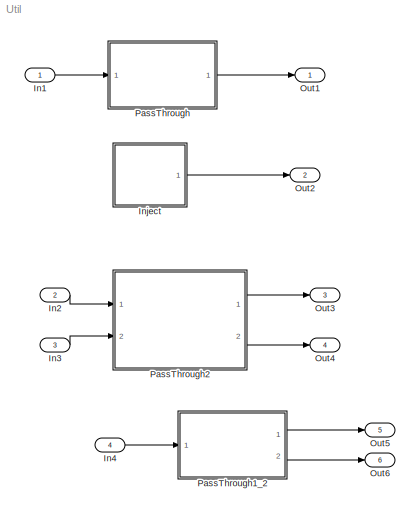
MODEL Util
KIND model
BLOCK [Inport] In1
  IconDisplay = Port number
  OutDataType = fixdt(1, 16)
  OutScaling = 2^0
  SID = 1
BLOCK [Inport] In2
  IconDisplay = Port number
  OutDataType = fixdt(1, 16)
  OutScaling = 2^0
  Port = 2
  SID = 11
BLOCK [Inport] In3
  IconDisplay = Port number
  OutDataType = fixdt(1, 16)
  OutScaling = 2^0
  Port = 3
  SID = 17
BLOCK [Inport] In4
  IconDisplay = Port number
  OutDataType = fixdt(1, 16)
  OutScaling = 2^0
  Port = 4
  SID = 26
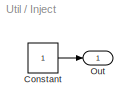
BLOCK [SubSystem] Inject
  FunctionWithSeparateData = off
  MaskHideContents = off
  MinAlgLoopOccurrences = off
  Opaque = off
  Ports = [0, 1]
  PropExecContextOutsideSubsystem = off
  RTWSystemCode = Auto
  RequestExecContextInheritance = off
  SID = 9
BLOCK [Constant] Inject/Constant
  OutDataType = fixdt(1, 16)
  OutScaling = 2^0
  SID = 4
BLOCK [Outport] Inject/Out
  IconDisplay = Port number
  SID = 10
BLOCK [Outport] Out1
  IconDisplay = Port number
  OutDataType = fixdt(1, 16)
  OutScaling = 2^0
  SID = 2
BLOCK [Outport] Out2
  IconDisplay = Port number
  OutDataType = fixdt(1, 16)
  OutScaling = 2^0
  Port = 2
  SID = 5
BLOCK [Outport] Out3
  IconDisplay = Port number
  OutDataType = fixdt(1, 16)
  OutScaling = 2^0
  Port = 3
  SID = 16
BLOCK [Outport] Out4
  IconDisplay = Port number
  OutDataType = fixdt(1, 16)
  OutScaling = 2^0
  Port = 4
  SID = 18
BLOCK [Outport] Out5
  IconDisplay = Port number
  OutDataType = fixdt(1, 16)
  OutScaling = 2^0
  Port = 5
  SID = 31
BLOCK [Outport] Out6
  IconDisplay = Port number
  OutDataType = fixdt(1, 16)
  OutScaling = 2^0
  Port = 6
  SID = 33
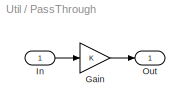
BLOCK [SubSystem] PassThrough
  FunctionWithSeparateData = off
  MaskHideContents = off
  MinAlgLoopOccurrences = off
  Opaque = off
  Ports = [1, 1]
  PropExecContextOutsideSubsystem = off
  RTWSystemCode = Auto
  RequestExecContextInheritance = off
  SID = 6
BLOCK [Gain] PassThrough/Gain
  OutDataType = fixdt(1, 16)
  OutDataTypeMode = Inherit via internal rule
  OutDataTypeStr = Inherit: Inherit via internal rule
  OutScaling = 2^0
  ParamDataTypeStr = Inherit: Inherit via internal rule
  ParameterDataType = fixdt(1, 16)
  ParameterDataTypeMode = Inherit via internal rule
  ParameterScaling = 2^0
  SID = 3
  SaturateOnIntegerOverflow = off
BLOCK [Inport] PassThrough/In
  IconDisplay = Port number
  SID = 7
BLOCK [Outport] PassThrough/Out
  IconDisplay = Port number
  SID = 8
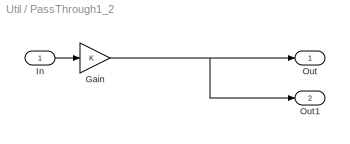
BLOCK [SubSystem] PassThrough1_2
  FunctionWithSeparateData = off
  MaskHideContents = off
  MinAlgLoopOccurrences = off
  Opaque = off
  Ports = [1, 2]
  PropExecContextOutsideSubsystem = off
  RTWSystemCode = Auto
  RequestExecContextInheritance = off
  SID = 27
BLOCK [Gain] PassThrough1_2/Gain
  OutDataType = fixdt(1, 16)
  OutDataTypeMode = Inherit via internal rule
  OutDataTypeStr = Inherit: Inherit via internal rule
  OutScaling = 2^0
  ParamDataTypeStr = Inherit: Inherit via internal rule
  ParameterDataType = fixdt(1, 16)
  ParameterDataTypeMode = Inherit via internal rule
  ParameterScaling = 2^0
  SID = 29
  SaturateOnIntegerOverflow = off
BLOCK [Inport] PassThrough1_2/In
  IconDisplay = Port number
  SID = 28
BLOCK [Outport] PassThrough1_2/Out
  IconDisplay = Port number
  SID = 30
BLOCK [Outport] PassThrough1_2/Out1
  IconDisplay = Port number
  Port = 2
  SID = 32
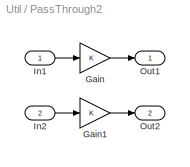
BLOCK [SubSystem] PassThrough2
  FunctionWithSeparateData = off
  MaskHideContents = off
  MinAlgLoopOccurrences = off
  Opaque = off
  Ports = [2, 2]
  PropExecContextOutsideSubsystem = off
  RTWSystemCode = Auto
  RequestExecContextInheritance = off
  SID = 21
BLOCK [Gain] PassThrough2/Gain
  OutDataType = fixdt(1, 16)
  OutDataTypeMode = Inherit via internal rule
  OutDataTypeStr = Inherit: Inherit via internal rule
  OutScaling = 2^0
  ParamDataTypeStr = Inherit: Inherit via internal rule
  ParameterDataType = fixdt(1, 16)
  ParameterDataTypeMode = Inherit via internal rule
  ParameterScaling = 2^0
  SID = 19
  SaturateOnIntegerOverflow = off
BLOCK [Gain] PassThrough2/Gain1
  OutDataType = fixdt(1, 16)
  OutDataTypeMode = Inherit via internal rule
  OutDataTypeStr = Inherit: Inherit via internal rule
  OutScaling = 2^0
  ParamDataTypeStr = Inherit: Inherit via internal rule
  ParameterDataType = fixdt(1, 16)
  ParameterDataTypeMode = Inherit via internal rule
  ParameterScaling = 2^0
  SID = 20
  SaturateOnIntegerOverflow = off
BLOCK [Inport] PassThrough2/In1
  IconDisplay = Port number
  SID = 22
BLOCK [Inport] PassThrough2/In2
  IconDisplay = Port number
  Port = 2
  SID = 24
BLOCK [Outport] PassThrough2/Out1
  IconDisplay = Port number
  SID = 23
BLOCK [Outport] PassThrough2/Out2
  IconDisplay = Port number
  Port = 2
  SID = 25
LINE In1:1 -> PassThrough:1
LINE In2:1 -> PassThrough2:1
LINE In3:1 -> PassThrough2:2
LINE In4:1 -> PassThrough1_2:1
LINE Inject/Constant:1 -> Inject/Out:1
LINE Inject:1 -> Out2:1
LINE PassThrough/Gain:1 -> PassThrough/Out:1
LINE PassThrough/In:1 -> PassThrough/Gain:1
NET PassThrough1_2/Gain:1 -> PassThrough1_2/Out1:1, PassThrough1_2/Out:1
LINE PassThrough1_2/In:1 -> PassThrough1_2/Gain:1
LINE PassThrough1_2:1 -> Out5:1
LINE PassThrough1_2:2 -> Out6:1
LINE PassThrough2/Gain1:1 -> PassThrough2/Out2:1
LINE PassThrough2/Gain:1 -> PassThrough2/Out1:1
LINE PassThrough2/In1:1 -> PassThrough2/Gain:1
LINE PassThrough2/In2:1 -> PassThrough2/Gain1:1
LINE PassThrough2:1 -> Out3:1
LINE PassThrough2:2 -> Out4:1
LINE PassThrough:1 -> Out1:1
note: NET lines group one-source signal fan-out (src -> all destinations, sorted); 1:1 wires keep LINE
